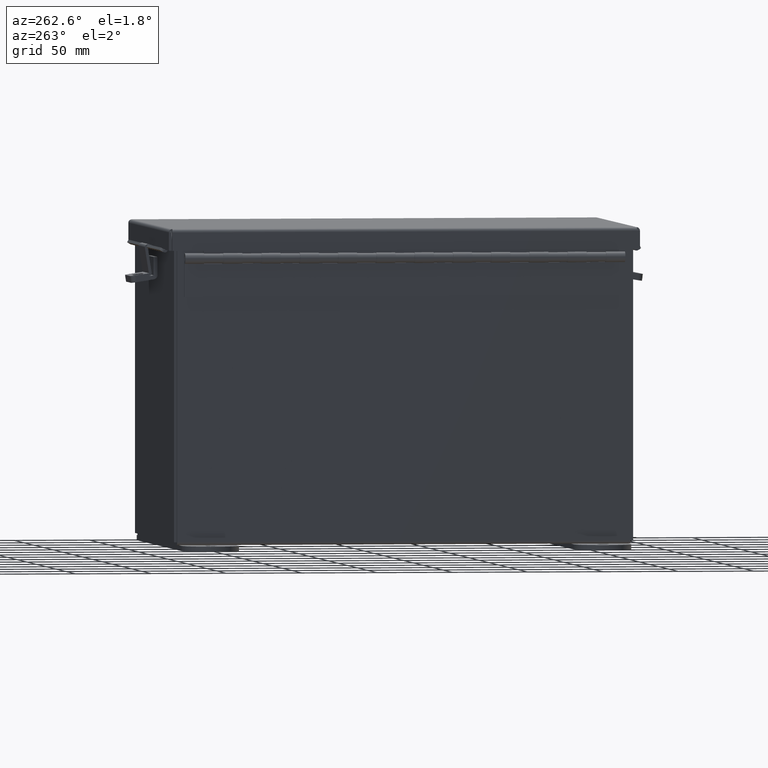
[diagram: clean part render]
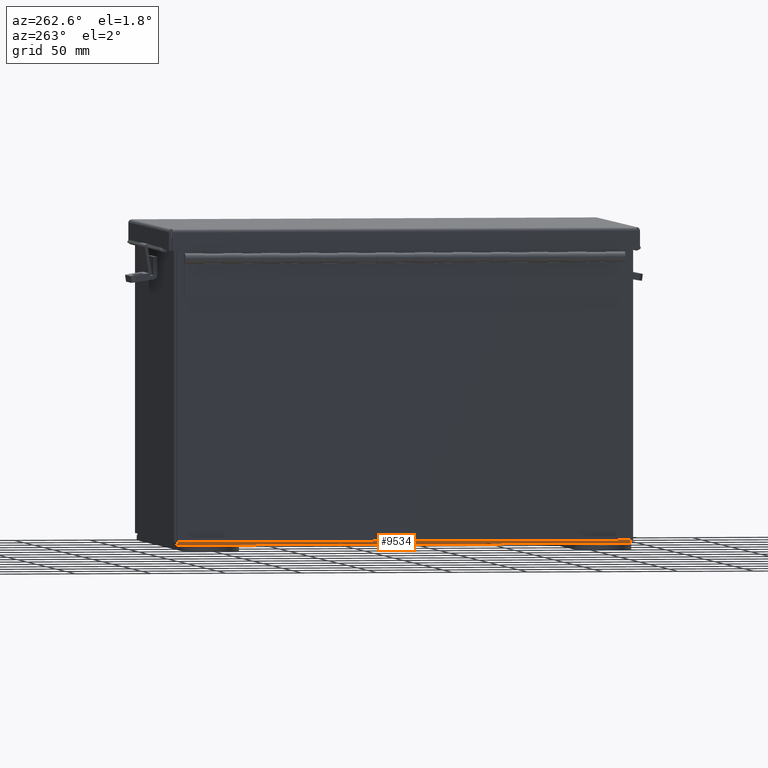
[diagram: same view with one face highlighted and labeled with its STEP entity id]
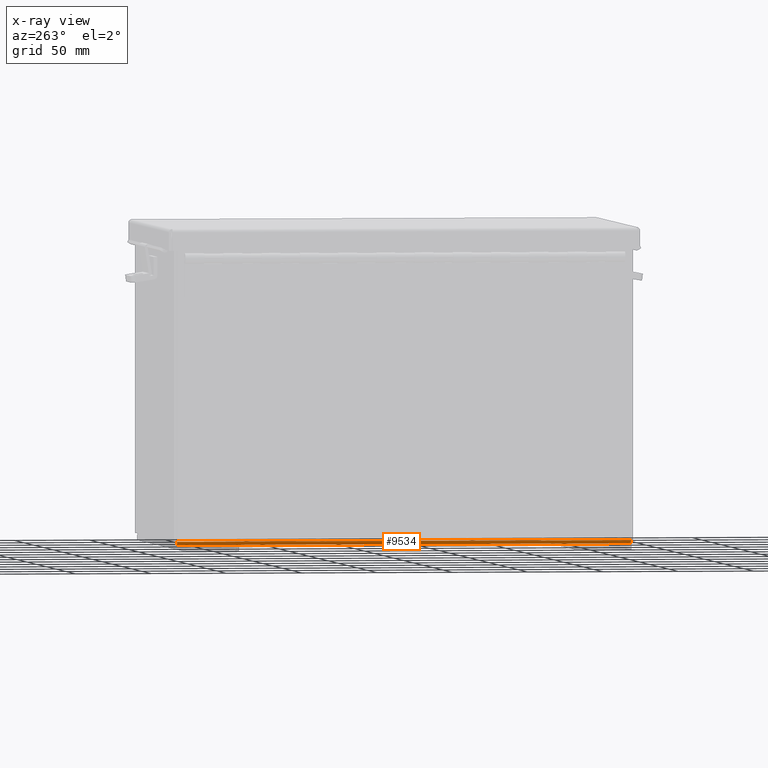
[diagram: x-ray of the same camera — body ghosted, the highlighted face saturated]
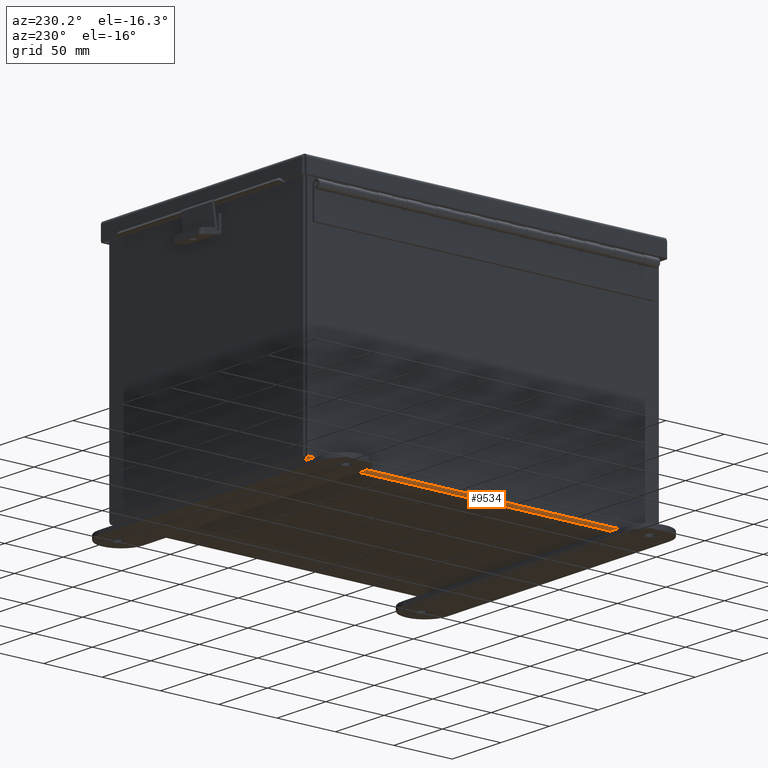
[diagram: same view with one face highlighted and labeled with its STEP entity id]
A machine part, auxiliary view. The second image highlights one B-rep face of the part: STEP entity #9534.
The next image is the same camera in x-ray: the body ghosted, the highlighted face saturated — about 0% of this face is hidden behind the body in this view.
A second angle (auxiliary view) of the same face is appended — the face is thin or edge-on in the first view.
In plain terms, the highlighted cylindrical surface (edge-blend (fillet) strip) has radius 2.2276 mm, axis along (0, -1, 0).
Its self-contained STEP definition (entity closure, byte-faithful):
#215 = CIRCLE ( 'NONE', #1689, 0.08770000000000009700 ) ;
#482 = VERTEX_POINT ( 'NONE', #14933 ) ;
#1689 = AXIS2_PLACEMENT_3D ( 'NONE', #14829, #13741, #14786 ) ;
#1933 = EDGE_LOOP ( 'NONE', ( #3266, #5362, #3489, #3662 ) ) ;
#1950 = VERTEX_POINT ( 'NONE', #13737 ) ;
#2092 = LINE ( 'NONE', #2749, #4529 ) ;
#2749 = CARTESIAN_POINT ( 'NONE',  ( -3.912299999999998800, -5.925300000000000000, -0.07469999999999918400 ) ) ;
#3266 = ORIENTED_EDGE ( 'NONE', *, *, #4193, .F. ) ;
#3489 = ORIENTED_EDGE ( 'NONE', *, *, #9740, .T. ) ;
#3559 = DIRECTION ( 'NONE',  ( -0.0000000000000000000, 1.000000000000000000, -8.208677865577646300E-017 ) ) ;
#3662 = ORIENTED_EDGE ( 'NONE', *, *, #14434, .F. ) ;
#4193 = EDGE_CURVE ( 'NONE', #10625, #1950, #2092, .T. ) ;
#4529 = VECTOR ( 'NONE', #3559, 39.37007874015748100 ) ;
#5362 = ORIENTED_EDGE ( 'NONE', *, *, #6909, .F. ) ;
#5585 = DIRECTION ( 'NONE',  ( 1.604352766077962300E-031, 1.000000000000000000, -4.610480471308228800E-017 ) ) ;
#5904 = VERTEX_POINT ( 'NONE', #9949 ) ;
#6314 = DIRECTION ( 'NONE',  ( 0.0000000000000000000, -1.000000000000000000, 8.208677865577646300E-017 ) ) ;
#6760 = AXIS2_PLACEMENT_3D ( 'NONE', #14057, #6845, #15290 ) ;
#6845 = DIRECTION ( 'NONE',  ( -0.0000000000000000000, 1.000000000000000000, -8.208677865577646300E-017 ) ) ;
#6909 = EDGE_CURVE ( 'NONE', #5904, #10625, #215, .T. ) ;
#7259 = DIRECTION ( 'NONE',  ( -1.000000000000000000, 0.0000000000000000000, -3.480030137311043200E-015 ) ) ;
#8375 = FACE_OUTER_BOUND ( 'NONE', #1933, .T. ) ;
#9534 = ADVANCED_FACE ( 'NONE', ( #8375 ), #10823, .T. ) ;
#9713 = CARTESIAN_POINT ( 'NONE',  ( -3.912299999999998800, -5.925299999999999100, -0.07469999999999918400 ) ) ;
#9740 = EDGE_CURVE ( 'NONE', #5904, #482, #11786, .T. ) ;
#9949 = CARTESIAN_POINT ( 'NONE',  ( -3.999999999999998700, -5.925299999999999100, 0.01300000000000039000 ) ) ;
#10625 = VERTEX_POINT ( 'NONE', #9713 ) ;
#10823 = CYLINDRICAL_SURFACE ( 'NONE', #12184, 0.08770000000000026400 ) ;
#11786 = LINE ( 'NONE', #13982, #14962 ) ;
#12184 = AXIS2_PLACEMENT_3D ( 'NONE', #13519, #6314, #7259 ) ;
#13519 = CARTESIAN_POINT ( 'NONE',  ( -3.912299999999998800, -5.925300000000000000, 0.01300000000000091900 ) ) ;
#13737 = CARTESIAN_POINT ( 'NONE',  ( -3.912299999999998800, 5.925300000000000000, -0.07470000000000000300 ) ) ;
#13741 = DIRECTION ( 'NONE',  ( 0.0000000000000000000, -1.000000000000000000, 8.208677865577646300E-017 ) ) ;
#13982 = CARTESIAN_POINT ( 'NONE',  ( -3.999999999999998700, 5.925300000000000000, 0.01299999999999984300 ) ) ;
#14057 = CARTESIAN_POINT ( 'NONE',  ( -3.912299999999998800, 5.925300000000000000, 0.01299999999999994600 ) ) ;
#14251 = CIRCLE ( 'NONE', #6760, 0.08770000000000009700 ) ;
#14434 = EDGE_CURVE ( 'NONE', #1950, #482, #14251, .T. ) ;
#14786 = DIRECTION ( 'NONE',  ( 0.0000000000000000000, 0.0000000000000000000, -1.000000000000000000 ) ) ;
#14829 = CARTESIAN_POINT ( 'NONE',  ( -3.912299999999998800, -5.925299999999999100, 0.01300000000000091900 ) ) ;
#14933 = CARTESIAN_POINT ( 'NONE',  ( -3.999999999999998700, 5.925300000000000000, 0.01299999999999963700 ) ) ;
#14962 = VECTOR ( 'NONE', #5585, 39.37007874015748100 ) ;
#15290 = DIRECTION ( 'NONE',  ( 0.0000000000000000000, 0.0000000000000000000, -1.000000000000000000 ) ) ;